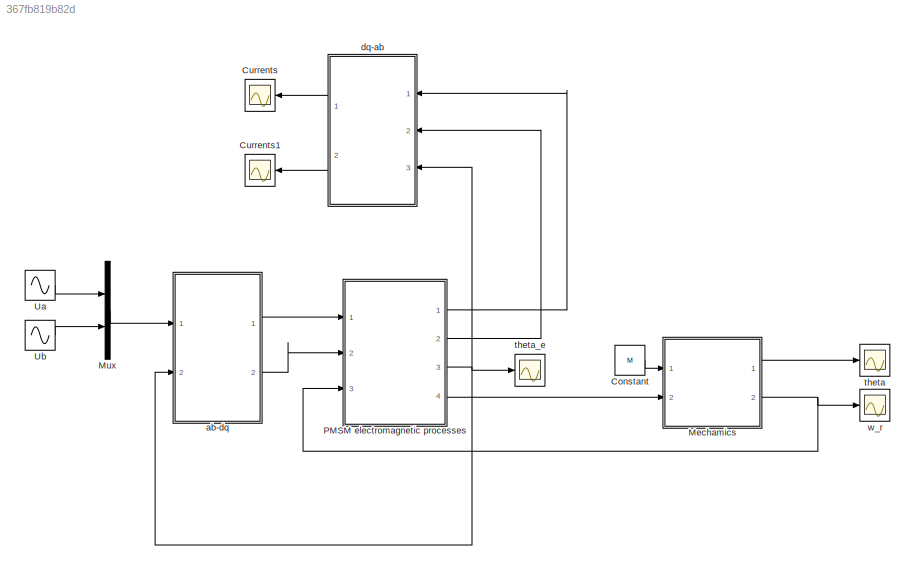
MODEL slx_367fb819b82d
KIND model
CONFIG AbsTol = auto
CONFIG EnableMultiTasking = off
CONFIG FixedStep = auto
CONFIG MaxStep = auto
CONFIG MinStep = auto
CONFIG RelTol = 1e-3
CONFIG SampleTimeConstraint = Unconstrained
CONFIG Solver = VariableStepAuto
CONFIG SolverName = VariableStepAuto
CONFIG StartTime = 0.0
CONFIG StopTime = 100
BLOCK [Constant] Constant
  Value = M
BLOCK [Scope] Currents
  NumInputPorts = 1
  Ports = [1]
  ScopeSpecificationString = Simulink.scopes.TimeScopeBlockCfg('CurrentConfiguration', extmgr.ConfigurationSet(extmgr.Configuration('Core','General UI',true),extmgr.Configuration('Core','Source UI',true),extmgr.Configuration('Sources','WiredSimulink',true,'DataLoggingVariableName','ScopeData3'),extmgr.Configuration('Visuals','Time Domain',true),extmgr.Configuration('Tools','Plot Navigation',true),extmgr.Configuration('Tools',...<+40ch>
BLOCK [Scope] Currents1
  NumInputPorts = 1
  Ports = [1]
  ScopeSpecificationString = Simulink.scopes.TimeScopeBlockCfg('CurrentConfiguration', extmgr.ConfigurationSet(extmgr.Configuration('Core','General UI',true),extmgr.Configuration('Core','Source UI',true),extmgr.Configuration('Sources','WiredSimulink',true,'DataLoggingVariableName','ScopeData1'),extmgr.Configuration('Visuals','Time Domain',true),extmgr.Configuration('Tools','Plot Navigation',true),extmgr.Configuration('Tools',...<+40ch>
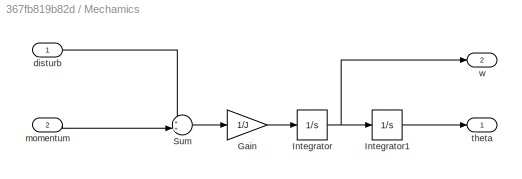
BLOCK [SubSystem] Mechamics
  Ports = [2, 2]
  RequestExecContextInheritance = off
  Variant = off
BLOCK [Gain] Mechamics/Gain
  Gain = 1/J
  OutDataTypeStr = Inherit: Inherit via internal rule
  ParamDataTypeStr = Inherit: Inherit via internal rule
  SaturateOnIntegerOverflow = off
BLOCK [Integrator] Mechamics/Integrator
  Ports = [1, 1]
BLOCK [Integrator] Mechamics/Integrator1
  Ports = [1, 1]
BLOCK [Sum] Mechamics/Sum
  IconShape = round
  InputSameDT = off
  Inputs = ++|
  OutDataTypeStr = Inherit: Inherit via internal rule
  Ports = [2, 1]
  SaturateOnIntegerOverflow = off
BLOCK [Inport] Mechamics/disturb
  IconDisplay = Port number
BLOCK [Inport] Mechamics/momentum
  IconDisplay = Port number
  Port = 2
BLOCK [Outport] Mechamics/theta
  IconDisplay = Port number
BLOCK [Outport] Mechamics/w
  IconDisplay = Port number
  Port = 2
BLOCK [Mux] Mux
  DisplayOption = bar
  Inputs = 2
  Ports = [2, 1]
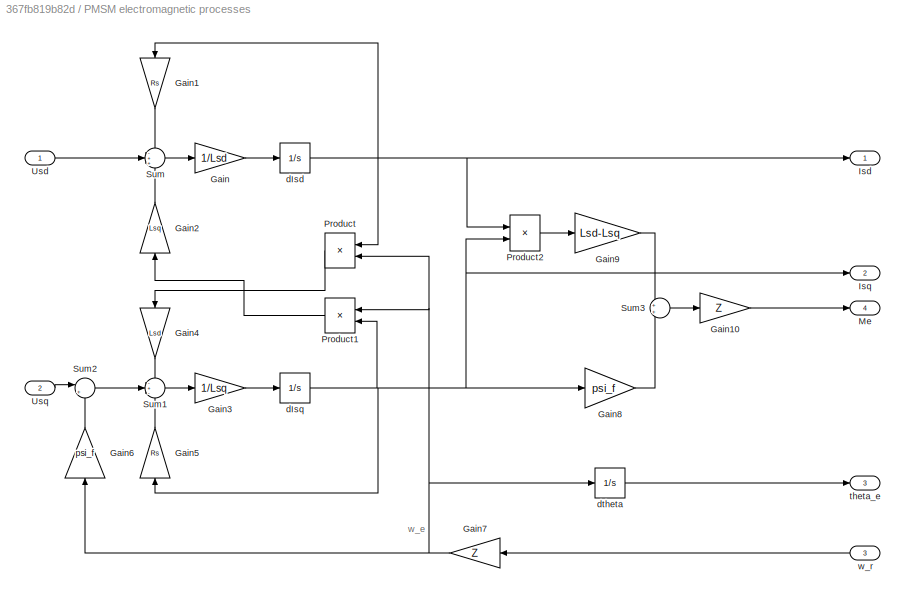
BLOCK [SubSystem] PMSM electromagnetic processes
  Ports = [3, 4]
  RequestExecContextInheritance = off
  Variant = off
BLOCK [Gain] PMSM electromagnetic processes/Gain
  Gain = 1/Lsd
  OutDataTypeStr = Inherit: Inherit via internal rule
  ParamDataTypeStr = Inherit: Inherit via internal rule
  SaturateOnIntegerOverflow = off
BLOCK [Gain] PMSM electromagnetic processes/Gain1
  Gain = Rs
  OutDataTypeStr = Inherit: Inherit via internal rule
  ParamDataTypeStr = Inherit: Inherit via internal rule
  SaturateOnIntegerOverflow = off
BLOCK [Gain] PMSM electromagnetic processes/Gain10
  Gain = Z
  OutDataTypeStr = Inherit: Inherit via internal rule
  ParamDataTypeStr = Inherit: Inherit via internal rule
  SaturateOnIntegerOverflow = off
BLOCK [Gain] PMSM electromagnetic processes/Gain2
  Gain = Lsq
  OutDataTypeStr = Inherit: Inherit via internal rule
  ParamDataTypeStr = Inherit: Inherit via internal rule
  SaturateOnIntegerOverflow = off
BLOCK [Gain] PMSM electromagnetic processes/Gain3
  Gain = 1/Lsq
  OutDataTypeStr = Inherit: Inherit via internal rule
  ParamDataTypeStr = Inherit: Inherit via internal rule
  SaturateOnIntegerOverflow = off
BLOCK [Gain] PMSM electromagnetic processes/Gain4
  Gain = Lsd
  OutDataTypeStr = Inherit: Inherit via internal rule
  ParamDataTypeStr = Inherit: Inherit via internal rule
  SaturateOnIntegerOverflow = off
BLOCK [Gain] PMSM electromagnetic processes/Gain5
  Gain = Rs
  OutDataTypeStr = Inherit: Inherit via internal rule
  ParamDataTypeStr = Inherit: Inherit via internal rule
  SaturateOnIntegerOverflow = off
BLOCK [Gain] PMSM electromagnetic processes/Gain6
  Gain = psi_f
  OutDataTypeStr = Inherit: Inherit via internal rule
  ParamDataTypeStr = Inherit: Inherit via internal rule
  SaturateOnIntegerOverflow = off
BLOCK [Gain] PMSM electromagnetic processes/Gain7
  Gain = Z
  OutDataTypeStr = Inherit: Inherit via internal rule
  ParamDataTypeStr = Inherit: Inherit via internal rule
  SaturateOnIntegerOverflow = off
BLOCK [Gain] PMSM electromagnetic processes/Gain8
  Gain = psi_f
  OutDataTypeStr = Inherit: Inherit via internal rule
  ParamDataTypeStr = Inherit: Inherit via internal rule
  SaturateOnIntegerOverflow = off
BLOCK [Gain] PMSM electromagnetic processes/Gain9
  Gain = Lsd-Lsq
  OutDataTypeStr = Inherit: Inherit via internal rule
  ParamDataTypeStr = Inherit: Inherit via internal rule
  SaturateOnIntegerOverflow = off
BLOCK [Outport] PMSM electromagnetic processes/Isd
  IconDisplay = Port number
BLOCK [Outport] PMSM electromagnetic processes/Isq
  IconDisplay = Port number
  Port = 2
BLOCK [Outport] PMSM electromagnetic processes/Me
  IconDisplay = Port number
  Port = 4
BLOCK [Product] PMSM electromagnetic processes/Product
  InputSameDT = off
  OutDataTypeStr = Inherit: Inherit via internal rule
  Ports = [2, 1]
  RndMeth = Floor
  SaturateOnIntegerOverflow = off
BLOCK [Product] PMSM electromagnetic processes/Product1
  InputSameDT = off
  OutDataTypeStr = Inherit: Inherit via internal rule
  Ports = [2, 1]
  RndMeth = Floor
  SaturateOnIntegerOverflow = off
BLOCK [Product] PMSM electromagnetic processes/Product2
  InputSameDT = off
  OutDataTypeStr = Inherit: Inherit via internal rule
  Ports = [2, 1]
  RndMeth = Floor
  SaturateOnIntegerOverflow = off
BLOCK [Sum] PMSM electromagnetic processes/Sum
  IconShape = round
  InputSameDT = off
  Inputs = -++
  OutDataTypeStr = Inherit: Inherit via internal rule
  Ports = [3, 1]
  SaturateOnIntegerOverflow = off
BLOCK [Sum] PMSM electromagnetic processes/Sum1
  IconShape = round
  InputSameDT = off
  Inputs = -+-
  OutDataTypeStr = Inherit: Inherit via internal rule
  Ports = [3, 1]
  SaturateOnIntegerOverflow = off
BLOCK [Sum] PMSM electromagnetic processes/Sum2
  IconShape = round
  InputSameDT = off
  Inputs = |+-
  OutDataTypeStr = Inherit: Inherit via internal rule
  Ports = [2, 1]
  SaturateOnIntegerOverflow = off
BLOCK [Sum] PMSM electromagnetic processes/Sum3
  IconShape = round
  InputSameDT = off
  OutDataTypeStr = Inherit: Inherit via internal rule
  Ports = [2, 1]
  SaturateOnIntegerOverflow = off
BLOCK [Inport] PMSM electromagnetic processes/Usd
  IconDisplay = Port number
BLOCK [Inport] PMSM electromagnetic processes/Usq
  IconDisplay = Port number
  Port = 2
BLOCK [Integrator] PMSM electromagnetic processes/dIsd
  Ports = [1, 1]
BLOCK [Integrator] PMSM electromagnetic processes/dIsq
  Ports = [1, 1]
BLOCK [Integrator] PMSM electromagnetic processes/dtheta
  Ports = [1, 1]
BLOCK [Outport] PMSM electromagnetic processes/theta_e
  IconDisplay = Port number
  Port = 3
BLOCK [Inport] PMSM electromagnetic processes/w_r
  IconDisplay = Port number
  Port = 3
BLOCK [Sin] Ua
  Amplitude = 50
  Frequency = 50
  Ports = [0, 1]
  SampleTime = 0
BLOCK [Sin] Ub
  Amplitude = 50
  Frequency = 50
  Phase = pi/2
  Ports = [0, 1]
  SampleTime = 0
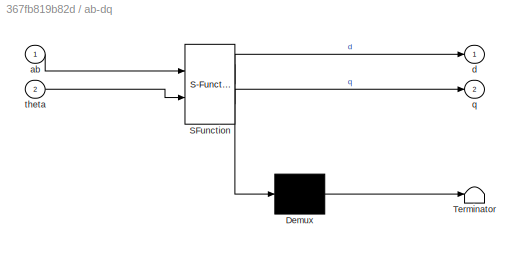
BLOCK [SubSystem] ab-dq
  ErrorFcn = Stateflow.Translate.translate
  PermitHierarchicalResolution = ExplicitOnly
  Ports = [2, 2]
  RequestExecContextInheritance = off
  SFBlockType = MATLAB Function
  TreatAsAtomicUnit = on
  Variant = off
BLOCK [Demux] ab-dq/ Demux 
  Outputs = 1
  Ports = [1, 1]
BLOCK [S-Function] ab-dq/ SFunction 
  EnableBusSupport = on
  FunctionName = sf_sfun
  PortCounts = [2 3]
  Ports = [2, 3]
  SFcnIsStateOwnerBlock = off
  SFunctionDeploymentMode = off
  Tag = Stateflow S-Function two_phase_PMSM 3
BLOCK [Terminator] ab-dq/ Terminator 
BLOCK [Inport] ab-dq/ab
  IconDisplay = Port number
BLOCK [Outport] ab-dq/d
  IconDisplay = Port number
BLOCK [Outport] ab-dq/q
  IconDisplay = Port number
  Port = 2
BLOCK [Inport] ab-dq/theta
  IconDisplay = Port number
  Port = 2
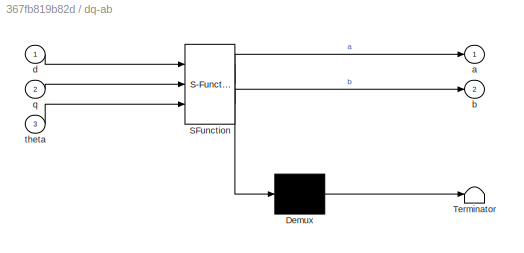
BLOCK [SubSystem] dq-ab
  ErrorFcn = Stateflow.Translate.translate
  PermitHierarchicalResolution = ExplicitOnly
  Ports = [3, 2]
  RequestExecContextInheritance = off
  SFBlockType = MATLAB Function
  TreatAsAtomicUnit = on
  Variant = off
BLOCK [Demux] dq-ab/ Demux 
  Outputs = 1
  Ports = [1, 1]
BLOCK [S-Function] dq-ab/ SFunction 
  EnableBusSupport = on
  FunctionName = sf_sfun
  PortCounts = [3 3]
  Ports = [3, 3]
  SFcnIsStateOwnerBlock = off
  SFunctionDeploymentMode = off
  Tag = Stateflow S-Function two_phase_PMSM 1
BLOCK [Terminator] dq-ab/ Terminator 
BLOCK [Outport] dq-ab/a
  IconDisplay = Port number
BLOCK [Outport] dq-ab/b
  IconDisplay = Port number
  Port = 2
BLOCK [Inport] dq-ab/d
  IconDisplay = Port number
BLOCK [Inport] dq-ab/q
  IconDisplay = Port number
  Port = 2
BLOCK [Inport] dq-ab/theta
  IconDisplay = Port number
  Port = 3
BLOCK [Scope] theta
  NumInputPorts = 1
  Ports = [1]
  ScopeSpecificationString = Simulink.scopes.TimeScopeBlockCfg('CurrentConfiguration', extmgr.ConfigurationSet(extmgr.Configuration('Core','General UI',true),extmgr.Configuration('Core','Source UI',true),extmgr.Configuration('Sources','WiredSimulink',true),extmgr.Configuration('Visuals','Time Domain',true,'SerializedDisplays',{struct('MinYLimReal','-0.02132','MaxYLimReal','0.00853','YLabelReal','','MinYLimMag','0.00000','MaxY...<+1331ch>
BLOCK [Scope] theta_e
  NumInputPorts = 1
  Ports = [1]
  ScopeSpecificationString = Simulink.scopes.TimeScopeBlockCfg('CurrentConfiguration', extmgr.ConfigurationSet(extmgr.Configuration('Core','General UI',true),extmgr.Configuration('Core','Source UI',true),extmgr.Configuration('Sources','WiredSimulink',true,'DataLoggingVariableName','ScopeData2'),extmgr.Configuration('Visuals','Time Domain',true),extmgr.Configuration('Tools','Plot Navigation',true),extmgr.Configuration('Tools',...<+40ch>
BLOCK [Scope] w_r
  NumInputPorts = 1
  Ports = [1]
  ScopeSpecificationString = Simulink.scopes.TimeScopeBlockCfg('CurrentConfiguration', extmgr.ConfigurationSet(extmgr.Configuration('Core','General UI',true),extmgr.Configuration('Core','Source UI',true),extmgr.Configuration('Sources','WiredSimulink',true,'DataLoggingVariableName','ScopeData1'),extmgr.Configuration('Visuals','Time Domain',true),extmgr.Configuration('Tools','Plot Navigation',true),extmgr.Configuration('Tools',...<+40ch>
ANNOTATION PMSM electromagnetic processes: w_e
LINE Constant:1 -> Mechamics:1
LINE Mechamics/Gain:1 -> Mechamics/Integrator:1
LINE Mechamics/Integrator1:1 -> Mechamics/theta:1
NET Mechamics/Integrator:1 -> Mechamics/Integrator1:1, Mechamics/w:1
LINE Mechamics/Sum:1 -> Mechamics/Gain:1
LINE Mechamics/disturb:1 -> Mechamics/Sum:1
LINE Mechamics/momentum:1 -> Mechamics/Sum:2
LINE Mechamics:1 -> theta:1
NET Mechamics:2 -> PMSM electromagnetic processes:3, w_r:1
LINE Mux:1 -> ab-dq:1
LINE PMSM electromagnetic processes/Gain10:1 -> PMSM electromagnetic processes/Me:1
LINE PMSM electromagnetic processes/Gain1:1 -> PMSM electromagnetic processes/Sum:1
LINE PMSM electromagnetic processes/Gain2:1 -> PMSM electromagnetic processes/Sum:3
LINE PMSM electromagnetic processes/Gain3:1 -> PMSM electromagnetic processes/dIsq:1
LINE PMSM electromagnetic processes/Gain4:1 -> PMSM electromagnetic processes/Sum1:1
LINE PMSM electromagnetic processes/Gain5:1 -> PMSM electromagnetic processes/Sum1:3
LINE PMSM electromagnetic processes/Gain6:1 -> PMSM electromagnetic processes/Sum2:2
NET PMSM electromagnetic processes/Gain7:1 -> PMSM electromagnetic processes/Gain6:1, PMSM electromagnetic processes/Product1:1, PMSM electromagnetic processes/Product:2, PMSM electromagnetic processes/dtheta:1
LINE PMSM electromagnetic processes/Gain8:1 -> PMSM electromagnetic processes/Sum3:2
LINE PMSM electromagnetic processes/Gain9:1 -> PMSM electromagnetic processes/Sum3:1
LINE PMSM electromagnetic processes/Gain:1 -> PMSM electromagnetic processes/dIsd:1
LINE PMSM electromagnetic processes/Product1:1 -> PMSM electromagnetic processes/Gain2:1
LINE PMSM electromagnetic processes/Product2:1 -> PMSM electromagnetic processes/Gain9:1
LINE PMSM electromagnetic processes/Product:1 -> PMSM electromagnetic processes/Gain4:1
LINE PMSM electromagnetic processes/Sum1:1 -> PMSM electromagnetic processes/Gain3:1
LINE PMSM electromagnetic processes/Sum2:1 -> PMSM electromagnetic processes/Sum1:2
LINE PMSM electromagnetic processes/Sum3:1 -> PMSM electromagnetic processes/Gain10:1
LINE PMSM electromagnetic processes/Sum:1 -> PMSM electromagnetic processes/Gain:1
LINE PMSM electromagnetic processes/Usd:1 -> PMSM electromagnetic processes/Sum:2
LINE PMSM electromagnetic processes/Usq:1 -> PMSM electromagnetic processes/Sum2:1
NET PMSM electromagnetic processes/dIsd:1 -> PMSM electromagnetic processes/Gain1:1, PMSM electromagnetic processes/Isd:1, PMSM electromagnetic processes/Product2:1, PMSM electromagnetic processes/Product:1
NET PMSM electromagnetic processes/dIsq:1 -> PMSM electromagnetic processes/Gain5:1, PMSM electromagnetic processes/Gain8:1, PMSM electromagnetic processes/Isq:1, PMSM electromagnetic processes/Product1:2, PMSM electromagnetic processes/Product2:2
LINE PMSM electromagnetic processes/dtheta:1 -> PMSM electromagnetic processes/theta_e:1
LINE PMSM electromagnetic processes/w_r:1 -> PMSM electromagnetic processes/Gain7:1
LINE PMSM electromagnetic processes:1 -> dq-ab:1
LINE PMSM electromagnetic processes:2 -> dq-ab:2
NET PMSM electromagnetic processes:3 -> ab-dq:2, dq-ab:3, theta_e:1
LINE PMSM electromagnetic processes:4 -> Mechamics:2
LINE Ua:1 -> Mux:1
LINE Ub:1 -> Mux:2
LINE ab-dq:1 -> PMSM electromagnetic processes:1
LINE ab-dq:2 -> PMSM electromagnetic processes:2
LINE dq-ab:1 -> Currents:1
LINE dq-ab:2 -> Currents1:1
note: NET lines group one-source signal fan-out (src -> all destinations, sorted); 1:1 wires keep LINE
CHART dq-ab states=1 transitions=1
  STATE_LABEL 'eML_blk_kernel()'
  STATE_LABEL 'SCRIPT:\nfunction [a, b] = dq_ab(d, q, theta)\na = d*cos(theta)-q*sin(theta);\nb = d*sin(theta)+q*cos(theta);\n\n\n\n\n\n'
CHART ab-dq states=1 transitions=1
  STATE_LABEL 'eML_blk_kernel()'
  STATE_LABEL 'SCRIPT:\nfunction [d, q] = ABC_dq(ab, theta)\na = ab(1);\nb = ab(2);\n\nd = b*sin(theta)+a*cos(theta);\nq = b*cos(theta)-a*sin(theta);\n\n'
